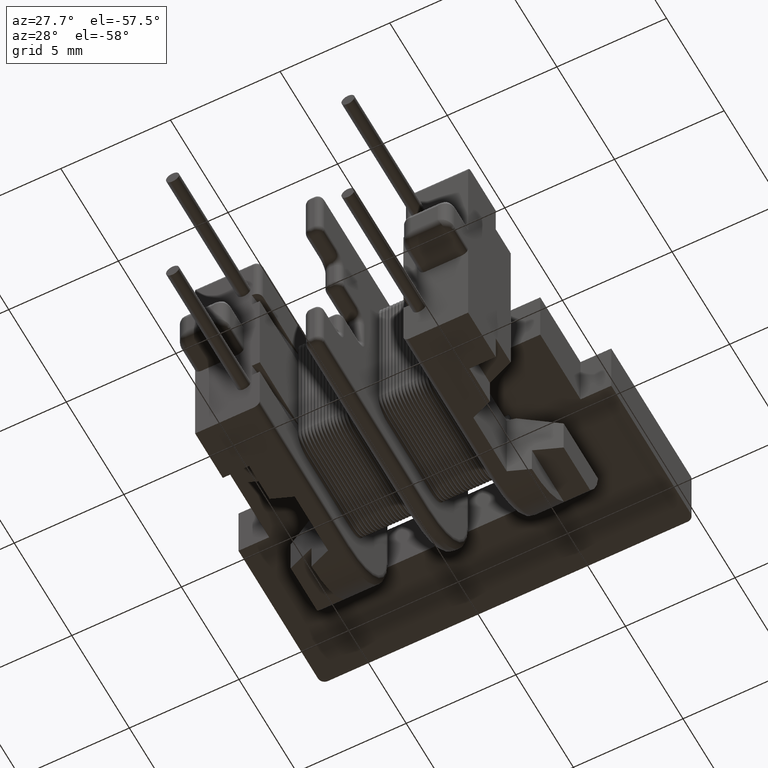
[diagram: clean part render]
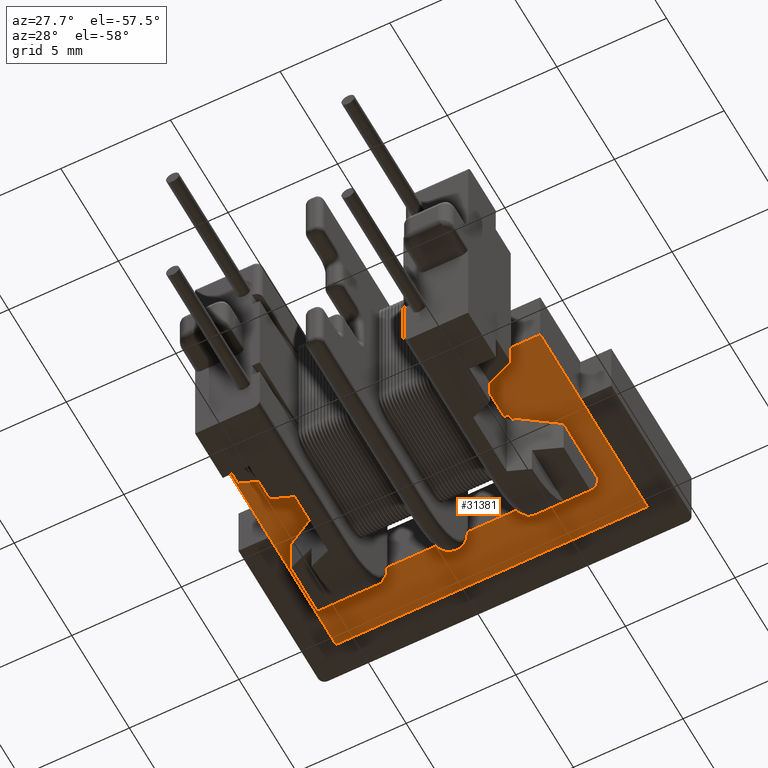
[diagram: same view with one face highlighted and labeled with its STEP entity id]
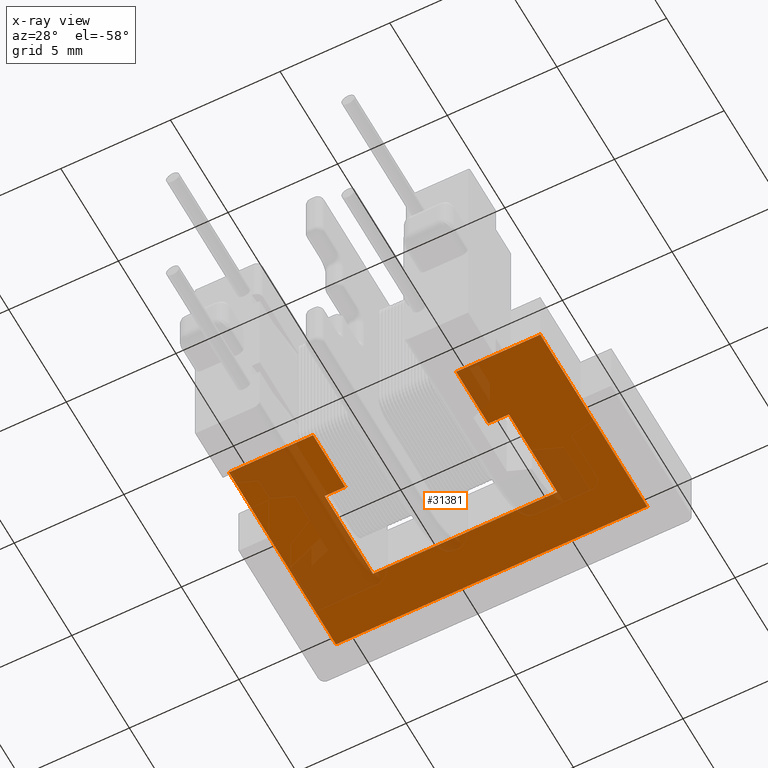
[diagram: x-ray of the same camera — body ghosted, the highlighted face saturated]
A machine part, auxiliary view. The second image highlights one B-rep face of the part: STEP entity #31381.
The next image is the same camera in x-ray: the body ghosted, the highlighted face saturated — about 28% of this face is hidden behind the body in this view.
In plain terms, the highlighted planar face has unit normal (-0, 0, -1).
Its self-contained STEP definition (entity closure, byte-faithful):
#850 = VECTOR ( 'NONE', #28699, 1000.000000000000000 ) ;
#953 = CARTESIAN_POINT ( 'NONE',  ( -1.734723475976807094E-15, -1.399999999999999689, -1.399999999999999911 ) ) ;
#1669 = VERTEX_POINT ( 'NONE', #13203 ) ;
#2186 = LINE ( 'NONE', #32873, #28855 ) ;
#2392 = VECTOR ( 'NONE', #31030, 1000.000000000000000 ) ;
#3558 = CARTESIAN_POINT ( 'NONE',  ( 7.100000000000000533, 3.499999999999996891, -1.400000000000000355 ) ) ;
#3671 = VERTEX_POINT ( 'NONE', #9200 ) ;
#3675 = VECTOR ( 'NONE', #35771, 1000.000000000000000 ) ;
#3742 = CARTESIAN_POINT ( 'NONE',  ( 7.100000000000000533, 7.900000000000002132, -1.400000000000000355 ) ) ;
#3830 = CARTESIAN_POINT ( 'NONE',  ( -4.200000000000001954, 1.400000000000001021, -1.399999999999999689 ) ) ;
#4330 = DIRECTION ( 'NONE',  ( -1.000000000000000000, 0.0000000000000000000, 5.551115123125782702E-17 ) ) ;
#4378 = CARTESIAN_POINT ( 'NONE',  ( -3.262499999999997513, 3.500000000000000000, -1.399999999999999689 ) ) ;
#4717 = VECTOR ( 'NONE', #24473, 1000.000000000000000 ) ;
#5397 = CARTESIAN_POINT ( 'NONE',  ( 7.100000000000001421, 8.400000000000000355, -1.399999999999999911 ) ) ;
#5443 = VERTEX_POINT ( 'NONE', #18530 ) ;
#5805 = VERTEX_POINT ( 'NONE', #11744 ) ;
#6162 = AXIS2_PLACEMENT_3D ( 'NONE', #16500, #22360, #4330 ) ;
#6334 = LINE ( 'NONE', #21389, #27881 ) ;
#6379 = EDGE_CURVE ( 'NONE', #37981, #18567, #19139, .T. ) ;
#6717 = CARTESIAN_POINT ( 'NONE',  ( -3.262499999999997513, 1.400000000000001021, -1.399999999999999689 ) ) ;
#6754 = ORIENTED_EDGE ( 'NONE', *, *, #24630, .T. ) ;
#7485 = VERTEX_POINT ( 'NONE', #13378 ) ;
#8081 = CARTESIAN_POINT ( 'NONE',  ( -7.100000000000001421, -1.399999999999999689, -1.399999999999999467 ) ) ;
#8374 = EDGE_CURVE ( 'NONE', #16049, #30964, #24421, .T. ) ;
#8638 = CARTESIAN_POINT ( 'NONE',  ( -4.200000000000001954, 7.900000000000002132, -1.399999999999999689 ) ) ;
#8853 = DIRECTION ( 'NONE',  ( -1.000000000000000000, 0.0000000000000000000, 0.0000000000000000000 ) ) ;
#9200 = CARTESIAN_POINT ( 'NONE',  ( -7.099999999999996980, 7.900000000000002132, -1.399999999999999467 ) ) ;
#9412 = EDGE_CURVE ( 'NONE', #30540, #5805, #35641, .T. ) ;
#9782 = VECTOR ( 'NONE', #26170, 1000.000000000000000 ) ;
#9819 = EDGE_CURVE ( 'NONE', #3671, #26503, #34590, .T. ) ;
#11066 = ORIENTED_EDGE ( 'NONE', *, *, #15622, .T. ) ;
#11744 = CARTESIAN_POINT ( 'NONE',  ( 7.099999999999998757, -1.400000000000001021, -1.399999999999999911 ) ) ;
#12212 = CARTESIAN_POINT ( 'NONE',  ( 3.262499999999998401, -1.400000000000001021, -1.399999999999999911 ) ) ;
#13147 = DIRECTION ( 'NONE',  ( 1.000000000000000000, -1.032573497605242224E-16, -5.551115123125782702E-17 ) ) ;
#13203 = CARTESIAN_POINT ( 'NONE',  ( 3.262499999999999289, 1.399999999999998135, -1.399999999999999911 ) ) ;
#13357 = CARTESIAN_POINT ( 'NONE',  ( 8.673617379884035472E-16, 1.399999999999998579, -1.399999999999999911 ) ) ;
#13378 = CARTESIAN_POINT ( 'NONE',  ( -3.262499999999997513, -1.399999999999999689, -1.399999999999999689 ) ) ;
#13400 = EDGE_CURVE ( 'NONE', #36664, #5443, #6334, .T. ) ;
#13677 = EDGE_CURVE ( 'NONE', #5805, #23956, #2186, .T. ) ;
#13932 = LINE ( 'NONE', #4378, #850 ) ;
#15339 = LINE ( 'NONE', #25717, #3675 ) ;
#15497 = DIRECTION ( 'NONE',  ( -1.000000000000000000, 0.0000000000000000000, 5.551115123125782702E-17 ) ) ;
#15622 = EDGE_CURVE ( 'NONE', #26503, #30540, #20615, .T. ) ;
#16049 = VERTEX_POINT ( 'NONE', #8081 ) ;
#16193 = VECTOR ( 'NONE', #29016, 1000.000000000000000 ) ;
#16500 = CARTESIAN_POINT ( 'NONE',  ( -4.200000000000001954, 3.500000000000000000, -1.399999999999999689 ) ) ;
#17040 = ORIENTED_EDGE ( 'NONE', *, *, #37142, .T. ) ;
#17217 = DIRECTION ( 'NONE',  ( -3.097720492815726673E-16, -1.000000000000000000, 0.0000000000000000000 ) ) ;
#17269 = CARTESIAN_POINT ( 'NONE',  ( 7.099999999999999645, 2.100000000000000089, -1.399999999999999911 ) ) ;
#18530 = CARTESIAN_POINT ( 'NONE',  ( 4.200000000000001954, 5.599999999999998757, -1.399999999999999911 ) ) ;
#18567 = VERTEX_POINT ( 'NONE', #6717 ) ;
#18580 = EDGE_CURVE ( 'NONE', #7485, #16049, #32397, .T. ) ;
#19139 = LINE ( 'NONE', #37234, #29437 ) ;
#19404 = CARTESIAN_POINT ( 'NONE',  ( -7.099999999999999645, 2.100000000000000089, -1.399999999999999911 ) ) ;
#19459 = EDGE_CURVE ( 'NONE', #30964, #3671, #15339, .T. ) ;
#20244 = VECTOR ( 'NONE', #26379, 1000.000000000000000 ) ;
#20615 = LINE ( 'NONE', #3558, #4717 ) ;
#20647 = ORIENTED_EDGE ( 'NONE', *, *, #26615, .T. ) ;
#21146 = CARTESIAN_POINT ( 'NONE',  ( -4.200000000000001066, 5.600000000000002309, -1.399999999999999689 ) ) ;
#21250 = VECTOR ( 'NONE', #38262, 1000.000000000000000 ) ;
#21342 = DIRECTION ( 'NONE',  ( -1.224646799147353454E-16, -1.000000000000000000, 6.798155367234456646E-33 ) ) ;
#21389 = CARTESIAN_POINT ( 'NONE',  ( 4.200000000000001954, 5.599999999999998757, -1.399999999999999911 ) ) ;
#21627 = DIRECTION ( 'NONE',  ( 1.224646799147353454E-16, 1.000000000000000000, 0.0000000000000000000 ) ) ;
#22242 = LINE ( 'NONE', #29522, #16193 ) ;
#22301 = ORIENTED_EDGE ( 'NONE', *, *, #19459, .T. ) ;
#22360 = DIRECTION ( 'NONE',  ( -5.551115123125782702E-17, 0.0000000000000000000, -1.000000000000000000 ) ) ;
#23685 = EDGE_CURVE ( 'NONE', #23956, #1669, #33376, .T. ) ;
#23956 = VERTEX_POINT ( 'NONE', #12212 ) ;
#24420 = VECTOR ( 'NONE', #15497, 1000.000000000000000 ) ;
#24421 = LINE ( 'NONE', #26165, #20244 ) ;
#24473 = DIRECTION ( 'NONE',  ( -2.797941090285172097E-16, -1.000000000000000000, 1.553169309989705980E-32 ) ) ;
#24630 = EDGE_CURVE ( 'NONE', #1669, #36664, #38414, .T. ) ;
#24981 = ORIENTED_EDGE ( 'NONE', *, *, #18580, .T. ) ;
#25717 = CARTESIAN_POINT ( 'NONE',  ( -7.099999999999998757, 3.500000000000001332, -1.399999999999999467 ) ) ;
#25826 = CARTESIAN_POINT ( 'NONE',  ( 3.262499999999999289, 3.500000000000000444, -1.399999999999999911 ) ) ;
#26165 = CARTESIAN_POINT ( 'NONE',  ( -7.100000000000001421, -1.399999999999999689, -1.399999999999999467 ) ) ;
#26170 = DIRECTION ( 'NONE',  ( 1.000000000000000000, -0.0000000000000000000, -5.551115123125782702E-17 ) ) ;
#26379 = DIRECTION ( 'NONE',  ( 3.097720492815726673E-16, 1.000000000000000000, -1.719580307488603284E-32 ) ) ;
#26503 = VERTEX_POINT ( 'NONE', #3742 ) ;
#26615 = EDGE_CURVE ( 'NONE', #18567, #7485, #13932, .T. ) ;
#27169 = ORIENTED_EDGE ( 'NONE', *, *, #8374, .T. ) ;
#27881 = VECTOR ( 'NONE', #21627, 1000.000000000000000 ) ;
#28283 = ORIENTED_EDGE ( 'NONE', *, *, #13677, .T. ) ;
#28658 = VERTEX_POINT ( 'NONE', #21146 ) ;
#28699 = DIRECTION ( 'NONE',  ( 0.0000000000000000000, -1.000000000000000000, 0.0000000000000000000 ) ) ;
#28855 = VECTOR ( 'NONE', #8853, 1000.000000000000000 ) ;
#29016 = DIRECTION ( 'NONE',  ( -1.000000000000000000, 1.032573497605242224E-16, 5.551115123125782702E-17 ) ) ;
#29437 = VECTOR ( 'NONE', #13147, 1000.000000000000000 ) ;
#29522 = CARTESIAN_POINT ( 'NONE',  ( -8.673617379884035472E-16, 5.600000000000002309, -1.399999999999999911 ) ) ;
#30514 = EDGE_CURVE ( 'NONE', #5443, #28658, #22242, .T. ) ;
#30540 = VERTEX_POINT ( 'NONE', #17269 ) ;
#30964 = VERTEX_POINT ( 'NONE', #19404 ) ;
#31030 = DIRECTION ( 'NONE',  ( 1.000000000000000000, -1.032573497605242224E-16, 0.0000000000000000000 ) ) ;
#31303 = ORIENTED_EDGE ( 'NONE', *, *, #30514, .T. ) ;
#31381 = ADVANCED_FACE ( 'NONE', ( #34815 ), #36910, .T. ) ;
#31615 = ORIENTED_EDGE ( 'NONE', *, *, #13400, .T. ) ;
#32062 = ORIENTED_EDGE ( 'NONE', *, *, #9412, .T. ) ;
#32305 = EDGE_LOOP ( 'NONE', ( #34499, #11066, #32062, #28283, #36723, #6754, #31615, #31303, #17040, #33760, #20647, #24981, #27169, #22301 ) ) ;
#32397 = LINE ( 'NONE', #953, #24420 ) ;
#32628 = VECTOR ( 'NONE', #21342, 1000.000000000000000 ) ;
#32873 = CARTESIAN_POINT ( 'NONE',  ( 8.673617379884035472E-16, -1.400000000000001021, -1.399999999999999911 ) ) ;
#33376 = LINE ( 'NONE', #25826, #21250 ) ;
#33543 = LINE ( 'NONE', #3830, #32628 ) ;
#33760 = ORIENTED_EDGE ( 'NONE', *, *, #6379, .T. ) ;
#34499 = ORIENTED_EDGE ( 'NONE', *, *, #9819, .T. ) ;
#34590 = LINE ( 'NONE', #8638, #9782 ) ;
#34815 = FACE_OUTER_BOUND ( 'NONE', #32305, .T. ) ;
#35641 = LINE ( 'NONE', #5397, #37972 ) ;
#35771 = DIRECTION ( 'NONE',  ( 4.663235150475286828E-16, 1.000000000000000000, -2.588615516649509967E-32 ) ) ;
#36664 = VERTEX_POINT ( 'NONE', #36973 ) ;
#36723 = ORIENTED_EDGE ( 'NONE', *, *, #23685, .T. ) ;
#36910 = PLANE ( 'NONE',  #6162 ) ;
#36973 = CARTESIAN_POINT ( 'NONE',  ( 4.200000000000001066, 1.399999999999998135, -1.399999999999999911 ) ) ;
#37142 = EDGE_CURVE ( 'NONE', #28658, #37981, #33543, .T. ) ;
#37234 = CARTESIAN_POINT ( 'NONE',  ( -1.734723475976807094E-15, 1.400000000000000577, -1.399999999999999911 ) ) ;
#37972 = VECTOR ( 'NONE', #17217, 1000.000000000000000 ) ;
#37981 = VERTEX_POINT ( 'NONE', #37990 ) ;
#37990 = CARTESIAN_POINT ( 'NONE',  ( -4.200000000000001954, 1.400000000000001021, -1.399999999999999689 ) ) ;
#38262 = DIRECTION ( 'NONE',  ( 0.0000000000000000000, 1.000000000000000000, 0.0000000000000000000 ) ) ;
#38414 = LINE ( 'NONE', #13357, #2392 ) ;